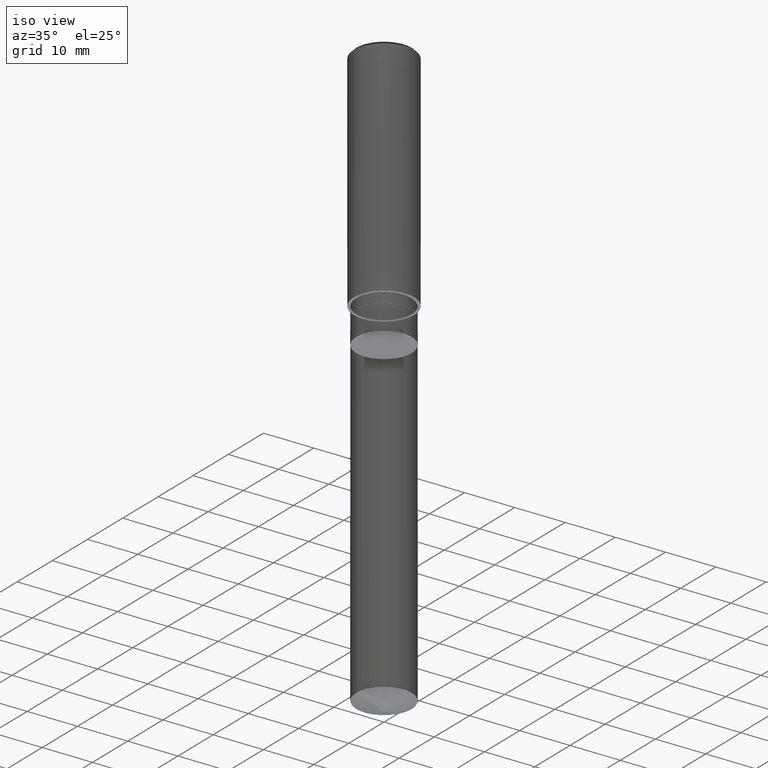
[diagram: clean part render]
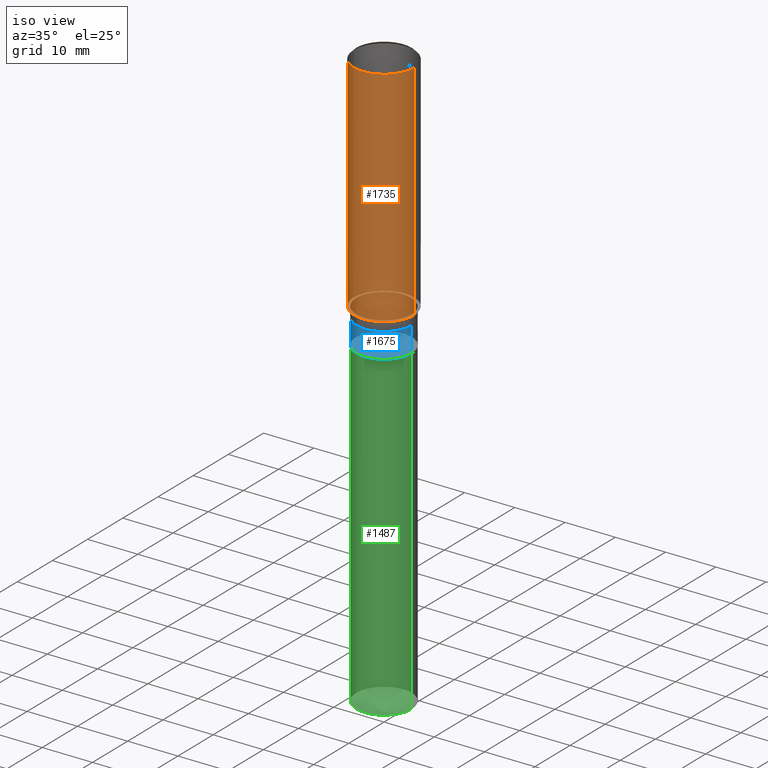
[diagram: same view with three faces highlighted in distinct colors, each labeled with its STEP entity id]
A machine part, iso view with three faces highlighted in distinct colors.
Their STEP definitions:

[orange] entity #1735 — the highlighted face is a freeform B-spline surface patch.
#1364=CARTESIAN_POINT('',(6.0,0.0,0.0));
#1368=CARTESIAN_POINT('',(-6.0,0.0,0.0));
#1369=CARTESIAN_POINT('',(6.0,0.0,44.5));
#1373=CARTESIAN_POINT('',(-6.0,0.0,44.5));
#1386=CARTESIAN_POINT('',(-6.0,-6.0,0.0));
#1387=CARTESIAN_POINT('',(0.0,-6.0,0.0));
#1388=CARTESIAN_POINT('',(6.0,-6.0,0.0));
#1389=CARTESIAN_POINT('',(-6.0,-6.0,44.5));
#1390=CARTESIAN_POINT('',(0.0,-6.0,44.5));
#1391=CARTESIAN_POINT('',(6.0,-6.0,44.5));
#1716=(
BOUNDED_SURFACE()
B_SPLINE_SURFACE(1,2,(
(#1368,#1386,#1387,#1388,#1364),
(#1373,#1389,#1390,#1391,#1369)
), .UNSPECIFIED.,.F.,.F.,.F.)
B_SPLINE_SURFACE_WITH_KNOTS((2,2),(3,2,3),(
0.0,1.0),(
0.0,0.5,1.0), .UNSPECIFIED.)
GEOMETRIC_REPRESENTATION_ITEM()
RATIONAL_B_SPLINE_SURFACE(((1.0,0.707106781187,1.0,0.707106781187,1.0),
(1.0,0.707106781187,1.0,0.707106781187,1.0)
))
REPRESENTATION_ITEM('')
SURFACE()
);
#1717=(
BOUNDED_CURVE()
B_SPLINE_CURVE(2,(#1364,#1388,#1387,#1386,#1368),.UNSPECIFIED.,.F.,.F.)
B_SPLINE_CURVE_WITH_KNOTS((3,2,3),
(0.0,0.5,1.0),.UNSPECIFIED.)
CURVE()
GEOMETRIC_REPRESENTATION_ITEM()
RATIONAL_B_SPLINE_CURVE((1.0,0.707106781187,1.0,0.707106781187,1.0))
REPRESENTATION_ITEM('')
);
#1718=(
BOUNDED_CURVE()
B_SPLINE_CURVE(1,(#1368,#1373),.UNSPECIFIED.,.F.,.F.)
B_SPLINE_CURVE_WITH_KNOTS((2,2),
(0.0,1.0),.UNSPECIFIED.)
CURVE()
GEOMETRIC_REPRESENTATION_ITEM()
RATIONAL_B_SPLINE_CURVE((1.0,1.0))
REPRESENTATION_ITEM('')
);
#1719=(
BOUNDED_CURVE()
B_SPLINE_CURVE(2,(#1373,#1389,#1390,#1391,#1369),.UNSPECIFIED.,.F.,.F.)
B_SPLINE_CURVE_WITH_KNOTS((3,2,3),
(0.0,0.5,1.0),.UNSPECIFIED.)
CURVE()
GEOMETRIC_REPRESENTATION_ITEM()
RATIONAL_B_SPLINE_CURVE((1.0,0.707106781187,1.0,0.707106781187,1.0))
REPRESENTATION_ITEM('')
);
#1720=(
BOUNDED_CURVE()
B_SPLINE_CURVE(1,(#1369,#1364),.UNSPECIFIED.,.F.,.F.)
B_SPLINE_CURVE_WITH_KNOTS((2,2),
(0.0,1.0),.UNSPECIFIED.)
CURVE()
GEOMETRIC_REPRESENTATION_ITEM()
RATIONAL_B_SPLINE_CURVE((1.0,1.0))
REPRESENTATION_ITEM('')
);
#1721=VERTEX_POINT('',#1364);
#1722=VERTEX_POINT('',#1368);
#1723=VERTEX_POINT('',#1369);
#1724=VERTEX_POINT('',#1373);
#1725=EDGE_CURVE('',#1721,#1722,#1717,.T.);
#1726=EDGE_CURVE('',#1722,#1724,#1718,.T.);
#1727=EDGE_CURVE('',#1724,#1723,#1719,.T.);
#1728=EDGE_CURVE('',#1723,#1721,#1720,.T.);
#1729=ORIENTED_EDGE('',*,*,#1725,.T.);
#1730=ORIENTED_EDGE('',*,*,#1726,.T.);
#1731=ORIENTED_EDGE('',*,*,#1727,.T.);
#1732=ORIENTED_EDGE('',*,*,#1728,.T.);
#1733=EDGE_LOOP('',(#1729,#1730,#1731,#1732));
#1734=FACE_OUTER_BOUND('',#1733,.T.);
#1735=ADVANCED_FACE('',(#1734),#1716,.T.);

[blue] entity #1675 — the highlighted face is a freeform B-spline surface patch.
#1342=CARTESIAN_POINT('',(5.5,0.0,-7.0));
#1346=CARTESIAN_POINT('',(-5.5,0.0,-7.0));
#1351=CARTESIAN_POINT('',(-5.5,-5.5,-7.0));
#1352=CARTESIAN_POINT('',(0.0,-5.5,-7.0));
#1353=CARTESIAN_POINT('',(5.5,-5.5,-7.0));
#1354=CARTESIAN_POINT('',(5.5,0.0,-2.0));
#1358=CARTESIAN_POINT('',(-5.5,0.0,-2.0));
#1380=CARTESIAN_POINT('',(-5.5,-5.5,-2.0));
#1381=CARTESIAN_POINT('',(0.0,-5.5,-2.0));
#1382=CARTESIAN_POINT('',(5.5,-5.5,-2.0));
#1656=(
BOUNDED_SURFACE()
B_SPLINE_SURFACE(1,2,(
(#1346,#1351,#1352,#1353,#1342),
(#1358,#1380,#1381,#1382,#1354)
), .UNSPECIFIED.,.F.,.F.,.F.)
B_SPLINE_SURFACE_WITH_KNOTS((2,2),(3,2,3),(
0.0,1.0),(
0.0,0.5,1.0), .UNSPECIFIED.)
GEOMETRIC_REPRESENTATION_ITEM()
RATIONAL_B_SPLINE_SURFACE(((1.0,0.707106781187,1.0,0.707106781187,1.0),
(1.0,0.707106781187,1.0,0.707106781187,1.0)
))
REPRESENTATION_ITEM('')
SURFACE()
);
#1657=(
BOUNDED_CURVE()
B_SPLINE_CURVE(2,(#1342,#1353,#1352,#1351,#1346),.UNSPECIFIED.,.F.,.F.)
B_SPLINE_CURVE_WITH_KNOTS((3,2,3),
(0.0,0.5,1.0),.UNSPECIFIED.)
CURVE()
GEOMETRIC_REPRESENTATION_ITEM()
RATIONAL_B_SPLINE_CURVE((1.0,0.707106781187,1.0,0.707106781187,1.0))
REPRESENTATION_ITEM('')
);
#1658=(
BOUNDED_CURVE()
B_SPLINE_CURVE(1,(#1346,#1358),.UNSPECIFIED.,.F.,.F.)
B_SPLINE_CURVE_WITH_KNOTS((2,2),
(0.0,1.0),.UNSPECIFIED.)
CURVE()
GEOMETRIC_REPRESENTATION_ITEM()
RATIONAL_B_SPLINE_CURVE((1.0,1.0))
REPRESENTATION_ITEM('')
);
#1659=(
BOUNDED_CURVE()
B_SPLINE_CURVE(2,(#1358,#1380,#1381,#1382,#1354),.UNSPECIFIED.,.F.,.F.)
B_SPLINE_CURVE_WITH_KNOTS((3,2,3),
(0.0,0.5,1.0),.UNSPECIFIED.)
CURVE()
GEOMETRIC_REPRESENTATION_ITEM()
RATIONAL_B_SPLINE_CURVE((1.0,0.707106781187,1.0,0.707106781187,1.0))
REPRESENTATION_ITEM('')
);
#1660=(
BOUNDED_CURVE()
B_SPLINE_CURVE(1,(#1354,#1342),.UNSPECIFIED.,.F.,.F.)
B_SPLINE_CURVE_WITH_KNOTS((2,2),
(0.0,1.0),.UNSPECIFIED.)
CURVE()
GEOMETRIC_REPRESENTATION_ITEM()
RATIONAL_B_SPLINE_CURVE((1.0,1.0))
REPRESENTATION_ITEM('')
);
#1661=VERTEX_POINT('',#1342);
#1662=VERTEX_POINT('',#1346);
#1663=VERTEX_POINT('',#1354);
#1664=VERTEX_POINT('',#1358);
#1665=EDGE_CURVE('',#1661,#1662,#1657,.T.);
#1666=EDGE_CURVE('',#1662,#1664,#1658,.T.);
#1667=EDGE_CURVE('',#1664,#1663,#1659,.T.);
#1668=EDGE_CURVE('',#1663,#1661,#1660,.T.);
#1669=ORIENTED_EDGE('',*,*,#1665,.T.);
#1670=ORIENTED_EDGE('',*,*,#1666,.T.);
#1671=ORIENTED_EDGE('',*,*,#1667,.T.);
#1672=ORIENTED_EDGE('',*,*,#1668,.T.);
#1673=EDGE_LOOP('',(#1669,#1670,#1671,#1672));
#1674=FACE_OUTER_BOUND('',#1673,.T.);
#1675=ADVANCED_FACE('',(#1674),#1656,.T.);

[green] entity #1487 — the highlighted face is a freeform B-spline surface patch.
#1337=CARTESIAN_POINT('',(5.5,0.0,-70.998163711536));
#1341=CARTESIAN_POINT('',(-5.5,0.0,-70.998163711536));
#1342=CARTESIAN_POINT('',(5.5,0.0,-7.0));
#1346=CARTESIAN_POINT('',(-5.5,0.0,-7.0));
#1348=CARTESIAN_POINT('',(-5.5,-5.5,-70.998163711536));
#1349=CARTESIAN_POINT('',(0.0,-5.5,-70.998163711536));
#1350=CARTESIAN_POINT('',(5.5,-5.5,-70.998163711536));
#1351=CARTESIAN_POINT('',(-5.5,-5.5,-7.0));
#1352=CARTESIAN_POINT('',(0.0,-5.5,-7.0));
#1353=CARTESIAN_POINT('',(5.5,-5.5,-7.0));
#1468=(
BOUNDED_SURFACE()
B_SPLINE_SURFACE(1,2,(
(#1341,#1348,#1349,#1350,#1337),
(#1346,#1351,#1352,#1353,#1342)
), .UNSPECIFIED.,.F.,.F.,.F.)
B_SPLINE_SURFACE_WITH_KNOTS((2,2),(3,2,3),(
0.0,1.0),(
0.0,0.5,1.0), .UNSPECIFIED.)
GEOMETRIC_REPRESENTATION_ITEM()
RATIONAL_B_SPLINE_SURFACE(((1.0,0.707106781187,1.0,0.707106781187,1.0),
(1.0,0.707106781187,1.0,0.707106781187,1.0)
))
REPRESENTATION_ITEM('')
SURFACE()
);
#1469=(
BOUNDED_CURVE()
B_SPLINE_CURVE(2,(#1337,#1350,#1349,#1348,#1341),.UNSPECIFIED.,.F.,.F.)
B_SPLINE_CURVE_WITH_KNOTS((3,2,3),
(0.0,0.5,1.0),.UNSPECIFIED.)
CURVE()
GEOMETRIC_REPRESENTATION_ITEM()
RATIONAL_B_SPLINE_CURVE((1.0,0.707106781187,1.0,0.707106781187,1.0))
REPRESENTATION_ITEM('')
);
#1470=(
BOUNDED_CURVE()
B_SPLINE_CURVE(1,(#1341,#1346),.UNSPECIFIED.,.F.,.F.)
B_SPLINE_CURVE_WITH_KNOTS((2,2),
(0.0,1.0),.UNSPECIFIED.)
CURVE()
GEOMETRIC_REPRESENTATION_ITEM()
RATIONAL_B_SPLINE_CURVE((1.0,1.0))
REPRESENTATION_ITEM('')
);
#1471=(
BOUNDED_CURVE()
B_SPLINE_CURVE(2,(#1346,#1351,#1352,#1353,#1342),.UNSPECIFIED.,.F.,.F.)
B_SPLINE_CURVE_WITH_KNOTS((3,2,3),
(0.0,0.5,1.0),.UNSPECIFIED.)
CURVE()
GEOMETRIC_REPRESENTATION_ITEM()
RATIONAL_B_SPLINE_CURVE((1.0,0.707106781187,1.0,0.707106781187,1.0))
REPRESENTATION_ITEM('')
);
#1472=(
BOUNDED_CURVE()
B_SPLINE_CURVE(1,(#1342,#1337),.UNSPECIFIED.,.F.,.F.)
B_SPLINE_CURVE_WITH_KNOTS((2,2),
(0.0,1.0),.UNSPECIFIED.)
CURVE()
GEOMETRIC_REPRESENTATION_ITEM()
RATIONAL_B_SPLINE_CURVE((1.0,1.0))
REPRESENTATION_ITEM('')
);
#1473=VERTEX_POINT('',#1337);
#1474=VERTEX_POINT('',#1341);
#1475=VERTEX_POINT('',#1342);
#1476=VERTEX_POINT('',#1346);
#1477=EDGE_CURVE('',#1473,#1474,#1469,.T.);
#1478=EDGE_CURVE('',#1474,#1476,#1470,.T.);
#1479=EDGE_CURVE('',#1476,#1475,#1471,.T.);
#1480=EDGE_CURVE('',#1475,#1473,#1472,.T.);
#1481=ORIENTED_EDGE('',*,*,#1477,.T.);
#1482=ORIENTED_EDGE('',*,*,#1478,.T.);
#1483=ORIENTED_EDGE('',*,*,#1479,.T.);
#1484=ORIENTED_EDGE('',*,*,#1480,.T.);
#1485=EDGE_LOOP('',(#1481,#1482,#1483,#1484));
#1486=FACE_OUTER_BOUND('',#1485,.T.);
#1487=ADVANCED_FACE('',(#1486),#1468,.T.);